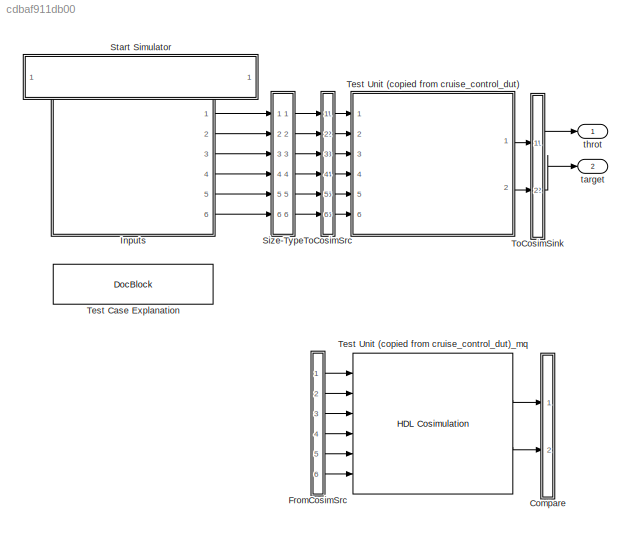
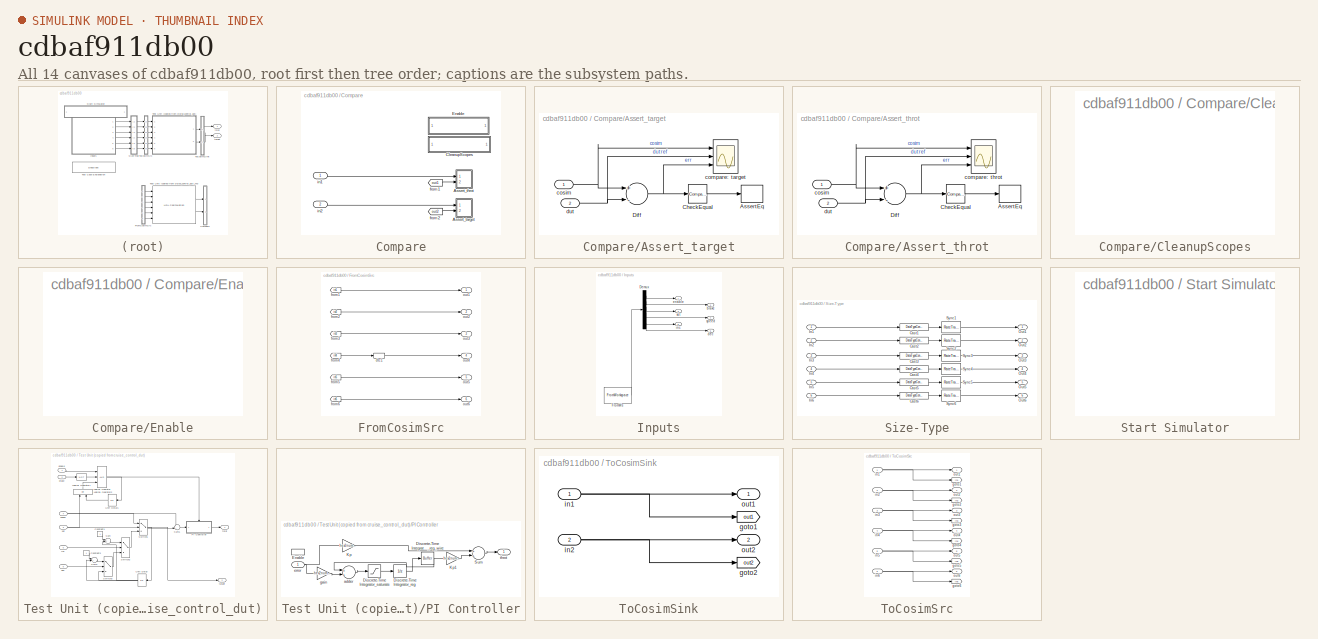
[diagram: thumbnail index - all 14 canvases of the model, root first then tree order]
MODEL slx_cdbaf911db00
KIND model
BLOCK [SubSystem] Compare
  Ports = [2]
  RequestExecContextInheritance = off
BLOCK [SubSystem] Compare/Assert_target
  Ports = [2]
  RequestExecContextInheritance = off
BLOCK [Assertion] Compare/Assert_target/AssertEq
  StopWhenAssertionFail = off
BLOCK [Reference] Compare/Assert_target/CheckEqual  REF=simulink/Logic and Bit
Operations/Compare
To Zero
  OutDataTypeStr = uint8
  Ports = [1, 1]
  SourceBlock = simulink/Logic and Bit\nOperations/Compare\nTo Zero
  SourceType = Compare To Zero
  ZeroCross = off
  relop = ==
BLOCK [Sum] Compare/Assert_target/Diff
  InputSameDT = off
  Inputs = +-
  OutDataTypeStr = Inherit: Inherit via internal rule
  Ports = [2, 1]
  SaturateOnIntegerOverflow = off
BLOCK [Scope] Compare/Assert_target/compare: target
  DataFormat = StructureWithTime
  Floating = off
  LimitDataPoints = off
  NumInputPorts = 3
  Ports = [3]
  ShowLegends = off
  YMax = 5~5~5
  YMin = -5~-5~-5
BLOCK [Inport] Compare/Assert_target/cosim
  IconDisplay = Port number
BLOCK [Inport] Compare/Assert_target/dut
  IconDisplay = Port number
  Port = 2
BLOCK [SubSystem] Compare/Assert_throt
  Ports = [2]
  RequestExecContextInheritance = off
BLOCK [Assertion] Compare/Assert_throt/AssertEq
  StopWhenAssertionFail = off
BLOCK [Reference] Compare/Assert_throt/CheckEqual  REF=simulink/Logic and Bit
Operations/Compare
To Zero
  OutDataTypeStr = uint8
  Ports = [1, 1]
  SourceBlock = simulink/Logic and Bit\nOperations/Compare\nTo Zero
  SourceType = Compare To Zero
  ZeroCross = off
  relop = ==
BLOCK [Sum] Compare/Assert_throt/Diff
  InputSameDT = off
  Inputs = +-
  OutDataTypeStr = Inherit: Inherit via internal rule
  Ports = [2, 1]
  SaturateOnIntegerOverflow = off
BLOCK [Scope] Compare/Assert_throt/compare: throt
  DataFormat = StructureWithTime
  Floating = off
  LimitDataPoints = off
  NumInputPorts = 3
  Ports = [3]
  ShowLegends = off
  YMax = 5~5~5
  YMin = -5~-5~-5
BLOCK [Inport] Compare/Assert_throt/cosim
  IconDisplay = Port number
BLOCK [Inport] Compare/Assert_throt/dut
  IconDisplay = Port number
  Port = 2
BLOCK [SubSystem] Compare/CleanupScopes
  OpenFcn = blkName = gcb;\nidx = regexp(blkName, '/CleanupScopes$', 'once');\nblkParent = blkName(1:idx-1);\nblks=find_system(blkParent, 'blocktype', 'Scope');\ne = get_param(blks{1}, 'Open');\nif strcmp(e, 'on'), f= 'off'; else f = 'on'; end\nfor ii=1:length(blks), set_param(blks{ii}, 'Open', f); end; drawnow;
  Ports = []
  RequestExecContextInheritance = off
BLOCK [SubSystem] Compare/Enable
  OpenFcn = blkName = gcb;\nidx = regexp(blkName, '/Enable$', 'once');\nblkParent = blkName(1:idx-1);\nblks=find_system(blkParent, 'blocktype', 'Assertion');\ne = get_param(blks{1}, 'Enabled');\nif strcmp(e, 'on'), f= 'off';, else, f = 'on';, end\nfor ii=1:length(blks), set_param(blks{ii}, 'Enabled', f);, end\ndispMsg = sprintf('disp([''Double click to turn %s \\n all Assertions''])', upper(e));\nset_param(gcb, 'Mask...<+19ch>
  Ports = []
  RequestExecContextInheritance = off
BLOCK [From] Compare/from1
  GotoTag = out1
  TagVisibility = global
BLOCK [From] Compare/from2
  GotoTag = out2
  TagVisibility = global
BLOCK [Inport] Compare/in1
  IconDisplay = Port number
BLOCK [Inport] Compare/in2
  IconDisplay = Port number
  Port = 2
BLOCK [SubSystem] FromCosimSrc
  Ports = [0, 6]
  RequestExecContextInheritance = off
BLOCK [DataTypeConversion] FromCosimSrc/dtc1
  OutDataTypeStr = double
BLOCK [From] FromCosimSrc/from1
  GotoTag = in1
  TagVisibility = global
BLOCK [From] FromCosimSrc/from2
  GotoTag = in2
  TagVisibility = global
BLOCK [From] FromCosimSrc/from3
  GotoTag = in3
  TagVisibility = global
BLOCK [From] FromCosimSrc/from4
  GotoTag = in4
  TagVisibility = global
BLOCK [From] FromCosimSrc/from5
  GotoTag = in5
  TagVisibility = global
BLOCK [From] FromCosimSrc/from6
  GotoTag = in6
  TagVisibility = global
BLOCK [Outport] FromCosimSrc/out1
  IconDisplay = Port number
BLOCK [Outport] FromCosimSrc/out2
  IconDisplay = Port number
  Port = 2
BLOCK [Outport] FromCosimSrc/out3
  IconDisplay = Port number
  Port = 3
BLOCK [Outport] FromCosimSrc/out4
  IconDisplay = Port number
  Port = 4
BLOCK [Outport] FromCosimSrc/out5
  IconDisplay = Port number
  Port = 5
BLOCK [Outport] FromCosimSrc/out6
  IconDisplay = Port number
  Port = 6
BLOCK [SubSystem] Inputs
  ClipboardFcn = sigbuilder_block('clipboard');
  CloseFcn = sigbuilder_block('close');
  ContinueFcn = sigbuilder_block('continue');
  CopyFcn = sigbuilder_block('copy');
  DeleteFcn = sigbuilder_block('delete');
  LoadFcn = sigbuilder_block('load');
  MaskHideContents = on
  ModelCloseFcn = sigbuilder_block('modelClose');
  NameChangeFcn = sigbuilder_block('namechange');
  OpenFcn = sigbuilder_block('open');
  PauseFcn = sigbuilder_block('pause');
  Ports = [0, 6]
  PreSaveFcn = sigbuilder_block('preSave');
  RequestExecContextInheritance = off
  StartFcn = sigbuilder_block('start');
  StopFcn = sigbuilder_block('stop');
  Tag = STV Subsys
BLOCK [Demux] Inputs/Demux
  Outputs = 6
  Ports = [1, 6]
  Tag = STV Demux
BLOCK [FromWorkspace] Inputs/FromWs
  SampleTime = 0
  Tag = STV FromWs
  VariableName = tuvar
BLOCK [Outport] Inputs/brake
  IconDisplay = Port number
  Port = 2
  Tag = STV Outport
BLOCK [Outport] Inputs/dec
  IconDisplay = Port number
  Port = 6
  Tag = STV Outport
BLOCK [Outport] Inputs/enable
  IconDisplay = Port number
  Tag = STV Outport
BLOCK [Outport] Inputs/inc
  IconDisplay = Port number
  Port = 5
  Tag = STV Outport
BLOCK [Outport] Inputs/set
  IconDisplay = Port number
  Port = 3
  Tag = STV Outport
BLOCK [Outport] Inputs/speed
  IconDisplay = Port number
  Port = 4
  Tag = STV Outport
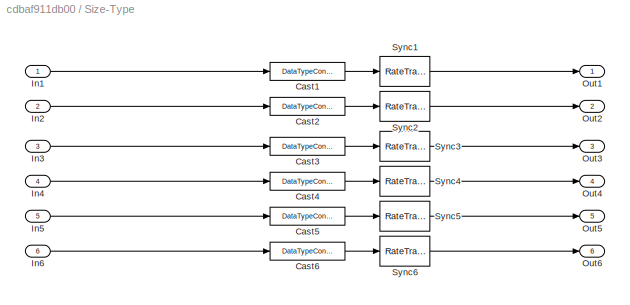
BLOCK [SubSystem] Size-Type
  Ports = [6, 6]
  RequestExecContextInheritance = off
BLOCK [DataTypeConversion] Size-Type/Cast1
  OutDataTypeStr = boolean
  RndMeth = Nearest
BLOCK [DataTypeConversion] Size-Type/Cast2
  OutDataTypeStr = boolean
  RndMeth = Nearest
BLOCK [DataTypeConversion] Size-Type/Cast3
  OutDataTypeStr = boolean
  RndMeth = Nearest
BLOCK [DataTypeConversion] Size-Type/Cast4
  OutDataTypeStr = double
  RndMeth = Nearest
BLOCK [DataTypeConversion] Size-Type/Cast5
  OutDataTypeStr = boolean
  RndMeth = Nearest
BLOCK [DataTypeConversion] Size-Type/Cast6
  OutDataTypeStr = boolean
  RndMeth = Nearest
BLOCK [Inport] Size-Type/In1
  IconDisplay = Port number
BLOCK [Inport] Size-Type/In2
  IconDisplay = Port number
  Port = 2
BLOCK [Inport] Size-Type/In3
  IconDisplay = Port number
  Port = 3
BLOCK [Inport] Size-Type/In4
  IconDisplay = Port number
  Port = 4
BLOCK [Inport] Size-Type/In5
  IconDisplay = Port number
  Port = 5
BLOCK [Inport] Size-Type/In6
  IconDisplay = Port number
  Port = 6
BLOCK [Outport] Size-Type/Out1
  IconDisplay = Port number
BLOCK [Outport] Size-Type/Out2
  IconDisplay = Port number
  Port = 2
BLOCK [Outport] Size-Type/Out3
  IconDisplay = Port number
  Port = 3
BLOCK [Outport] Size-Type/Out4
  IconDisplay = Port number
  Port = 4
BLOCK [Outport] Size-Type/Out5
  IconDisplay = Port number
  Port = 5
BLOCK [Outport] Size-Type/Out6
  IconDisplay = Port number
  Port = 6
BLOCK [RateTransition] Size-Type/Sync1
  OutPortSampleTime = [0.01,0]
BLOCK [RateTransition] Size-Type/Sync2
  OutPortSampleTime = [0.01,0]
BLOCK [RateTransition] Size-Type/Sync3
  OutPortSampleTime = [0.01,0]
BLOCK [RateTransition] Size-Type/Sync4
  OutPortSampleTime = [0.01,0]
BLOCK [RateTransition] Size-Type/Sync5
  OutPortSampleTime = [0.01,0]
BLOCK [RateTransition] Size-Type/Sync6
  OutPortSampleTime = [0.01,0]
BLOCK [SubSystem] Start Simulator
  OpenFcn = try\n   cosimDirName = pwd;\n   cd 'hdlsrc\cruise_control_dut_harness';\n   vsim('tclstart',gm_cruise_control_dut_harness_mq_tcl);\n   cd (cosimDirName);\n   clear cosimDirName;\ncatch me\n   disp('Failed to launch cosimulator with "vsim"');\n   disp (me.message);\n   cd (cosimDirName);\n   clear cosimDirName;\nend
  Ports = []
  RequestExecContextInheritance = off
BLOCK [Reference] Test Case Explanation  REF=simulink/Model-Wide
Utilities/DocBlock
  DocumentType = Text
  Ports = []
  SourceBlock = simulink/Model-Wide\nUtilities/DocBlock
  SourceType = DocBlock
  UserDataPersistent = on
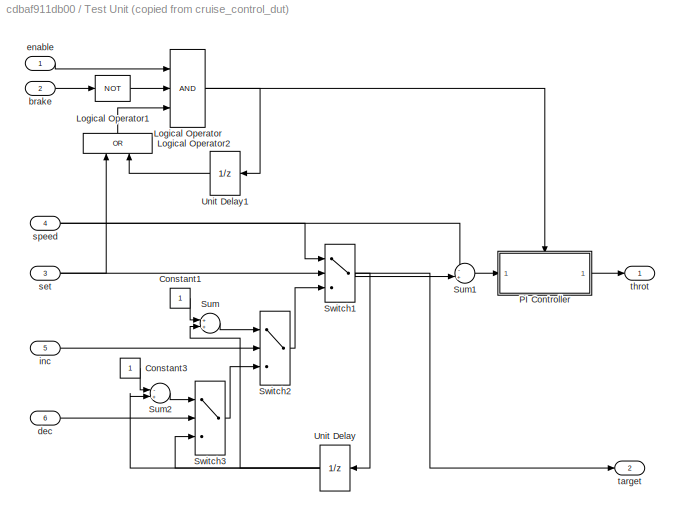
BLOCK [SubSystem] Test Unit (copied from cruise_control_dut)
  Permissions = ReadOnly
  Ports = [6, 2]
  RequestExecContextInheritance = off
BLOCK [Constant] Test Unit (copied from cruise_control_dut)/Constant1
BLOCK [Constant] Test Unit (copied from cruise_control_dut)/Constant3
BLOCK [Logic] Test Unit (copied from cruise_control_dut)/Logical Operator
  AllPortsSameDT = off
  Inputs = 3
  OutDataTypeStr = boolean
  Ports = [3, 1]
BLOCK [Logic] Test Unit (copied from cruise_control_dut)/Logical Operator1
  AllPortsSameDT = off
  Operator = NOT
  OutDataTypeStr = boolean
  Ports = [1, 1]
BLOCK [Logic] Test Unit (copied from cruise_control_dut)/Logical Operator2
  AllPortsSameDT = off
  Operator = OR
  OutDataTypeStr = boolean
  Ports = [2, 1]
BLOCK [SubSystem] Test Unit (copied from cruise_control_dut)/PI Controller
  Ports = [1, 1, 1]
  RequestExecContextInheritance = off
BLOCK [UnitDelay] Test Unit (copied from cruise_control_dut)/PI Controller/Discrete-Time Integrator_reg
  InitialCondition = hex2num('0000000000000000')
  SampleTime = 0.01
BLOCK [Saturate] Test Unit (copied from cruise_control_dut)/PI Controller/Discrete-Time Integrator_saturate
  InputPortMap = u0
  LowerLimit = hex2num('c014000000000000')
  OutDataTypeStr = double
  Ports = [1, 1]
  SampleTime = 0.01
  UpperLimit = hex2num('4014000000000000')
BLOCK [Reference] Test Unit (copied from cruise_control_dut)/PI Controller/Discrete-Time Integrator_x_reg_wire  REF=hdlmdlgenlib/Buffer
  Ports = [1, 1]
  SourceBlock = hdlmdlgenlib/Buffer
  SourceType = Buffer/Wire
BLOCK [EnablePort] Test Unit (copied from cruise_control_dut)/PI Controller/Enable
  Ports = []
BLOCK [Gain] Test Unit (copied from cruise_control_dut)/PI Controller/Kp
  Gain = hex2num('3f947ae147ae147b')
  OutDataTypeStr = double
  ParamDataTypeStr = Inherit: Inherit via internal rule
  SampleTime = 0.01
  SaturateOnIntegerOverflow = off
BLOCK [Gain] Test Unit (copied from cruise_control_dut)/PI Controller/Kp1
  Gain = hex2num('3f847ae147ae147b')
  OutDataTypeStr = double
  ParamDataTypeStr = Inherit: Inherit via internal rule
  SampleTime = 0.01
  SaturateOnIntegerOverflow = off
BLOCK [Sum] Test Unit (copied from cruise_control_dut)/PI Controller/Sum
  AccumDataTypeStr = double
  InputSameDT = off
  OutDataTypeStr = double
  Ports = [2, 1]
  SampleTime = 0.01
  SaturateOnIntegerOverflow = off
BLOCK [Sum] Test Unit (copied from cruise_control_dut)/PI Controller/adder
  AccumDataTypeStr = double
  InputSameDT = off
  OutDataTypeStr = double
  Ports = [2, 1]
  SampleTime = 0.01
  SaturateOnIntegerOverflow = off
BLOCK [Inport] Test Unit (copied from cruise_control_dut)/PI Controller/error
  IconDisplay = Port number
BLOCK [Gain] Test Unit (copied from cruise_control_dut)/PI Controller/gain
  Gain = hex2num('3f847ae147ae147b')
  OutDataTypeStr = double
  ParamDataTypeStr = Inherit: Inherit via internal rule
  SampleTime = 0.01
  SaturateOnIntegerOverflow = off
BLOCK [Outport] Test Unit (copied from cruise_control_dut)/PI Controller/throt
  IconDisplay = Port number
  InitialOutput = 0
BLOCK [Sum] Test Unit (copied from cruise_control_dut)/Sum
  IconShape = round
  InputSameDT = off
  Inputs = ++|
  OutDataTypeStr = Inherit: Inherit via internal rule
  Ports = [2, 1]
  SaturateOnIntegerOverflow = off
BLOCK [Sum] Test Unit (copied from cruise_control_dut)/Sum1
  IconShape = round
  InputSameDT = off
  Inputs = -+|
  OutDataTypeStr = Inherit: Inherit via internal rule
  Ports = [2, 1]
  SaturateOnIntegerOverflow = off
BLOCK [Sum] Test Unit (copied from cruise_control_dut)/Sum2
  IconShape = round
  InputSameDT = off
  Inputs = -+|
  OutDataTypeStr = Inherit: Inherit via internal rule
  Ports = [2, 1]
  SaturateOnIntegerOverflow = off
BLOCK [Switch] Test Unit (copied from cruise_control_dut)/Switch1
  Criteria = u2 ~= 0
  InputSameDT = off
  SaturateOnIntegerOverflow = off
BLOCK [Switch] Test Unit (copied from cruise_control_dut)/Switch2
  Criteria = u2 ~= 0
  InputSameDT = off
  SaturateOnIntegerOverflow = off
BLOCK [Switch] Test Unit (copied from cruise_control_dut)/Switch3
  Criteria = u2 ~= 0
  InputSameDT = off
  SaturateOnIntegerOverflow = off
BLOCK [UnitDelay] Test Unit (copied from cruise_control_dut)/Unit Delay
  SampleTime = 0.01
BLOCK [UnitDelay] Test Unit (copied from cruise_control_dut)/Unit Delay1
  SampleTime = 0.01
BLOCK [Inport] Test Unit (copied from cruise_control_dut)/brake
  IconDisplay = Port number
  OutDataTypeStr = boolean
  Port = 2
BLOCK [Inport] Test Unit (copied from cruise_control_dut)/dec
  IconDisplay = Port number
  OutDataTypeStr = boolean
  Port = 6
BLOCK [Inport] Test Unit (copied from cruise_control_dut)/enable
  IconDisplay = Port number
  OutDataTypeStr = boolean
BLOCK [Inport] Test Unit (copied from cruise_control_dut)/inc
  IconDisplay = Port number
  OutDataTypeStr = boolean
  Port = 5
BLOCK [Inport] Test Unit (copied from cruise_control_dut)/set
  IconDisplay = Port number
  OutDataTypeStr = boolean
  Port = 3
BLOCK [Inport] Test Unit (copied from cruise_control_dut)/speed
  IconDisplay = Port number
  OutDataTypeStr = double
  Port = 4
BLOCK [Outport] Test Unit (copied from cruise_control_dut)/target
  IconDisplay = Port number
  Port = 2
BLOCK [Outport] Test Unit (copied from cruise_control_dut)/throt
  IconDisplay = Port number
BLOCK [Reference] Test Unit (copied from cruise_control_dut)_mq  REF=modelsimlib/HDL Cosimulation
  AllowDirectFeedthrough = on
  ClockModes = []
  ClockTimes = []
  CommLocal = on
  CommPortNumber = 4449
  CommSharedMemory = on
  CommShowInfo = on
  CosimBypass = Full Simulation
  HdlClocks = 0
  PortFracLengths = [0,0,0,0,0,0,0,0]
  PortModes = [1 1 1 1 1 1 2 2 ]
  PortPaths = /Test_Unit_copied_from_cruise_control_dut/enable;/Test_Unit_copied_from_cruise_control_dut/brake;/Test_Unit_copied_from_cruise_control_dut/set;/Test_Unit_copied_from_cruise_control_dut/speed;/Test_Unit_copied_from_cruise_control_dut/inc;/Test_Unit_copied_from_cruise_control_dut/dec;/Test_Unit_copied_from_cruise_control_dut/throt;/Test_Unit_copied_from_cruise_control_dut/target
  PortSigns = [-1 -1 -1 -1 -1 -1 2 2 ]
  PortTimes = [-1 -1 -1 -1 -1 -1 0.01 0.01 ]
  Ports = [6, 2]
  PreRunTime = 40
  PreRunTimeUnit = ns
  ProductName = EDA Simulator Link MQ
  RunAutoTimescale = off
  SourceBlock = modelsimlib/HDL Cosimulation
  SourceType = Simulink and ModelSim Cosimulation
  TclPostSimCommand = puts "done"
  TclPreSimCommand = puts "Running Simulink Cosimulation block.";\n puts "Chip Name: --> cruise_control_dut_harness/Test Unit (copied from cruise_control_dut)";\n puts "Target language: --> vhdl";\n puts "Target directory: --> hdlsrc\cruise_control_dut_harness";\n puts [clock format [clock seconds]];\n# Clock force command;\nforce /Test_Unit_copied_from_cruise_control_dut/clk 0 0ns, 1 5ns -r 10ns;\n# Clock enable force comma...<+169ch>
  TimingMode = ns
  TimingScaleFactor = 1000
  idxCellArray = {'UNUSED_VAR'}
BLOCK [SubSystem] ToCosimSink
  Ports = [2, 2]
  RequestExecContextInheritance = off
BLOCK [Goto] ToCosimSink/goto1
  GotoTag = out1
  TagVisibility = global
BLOCK [Goto] ToCosimSink/goto2
  GotoTag = out2
  TagVisibility = global
BLOCK [Inport] ToCosimSink/in1
  IconDisplay = Port number
BLOCK [Inport] ToCosimSink/in2
  IconDisplay = Port number
  Port = 2
BLOCK [Outport] ToCosimSink/out1
  IconDisplay = Port number
BLOCK [Outport] ToCosimSink/out2
  IconDisplay = Port number
  Port = 2
BLOCK [SubSystem] ToCosimSrc
  Ports = [6, 6]
  RequestExecContextInheritance = off
BLOCK [Goto] ToCosimSrc/goto1
  GotoTag = in1
  TagVisibility = global
BLOCK [Goto] ToCosimSrc/goto2
  GotoTag = in2
  TagVisibility = global
BLOCK [Goto] ToCosimSrc/goto3
  GotoTag = in3
  TagVisibility = global
BLOCK [Goto] ToCosimSrc/goto4
  GotoTag = in4
  TagVisibility = global
BLOCK [Goto] ToCosimSrc/goto5
  GotoTag = in5
  TagVisibility = global
BLOCK [Goto] ToCosimSrc/goto6
  GotoTag = in6
  TagVisibility = global
BLOCK [Inport] ToCosimSrc/in1
  IconDisplay = Port number
BLOCK [Inport] ToCosimSrc/in2
  IconDisplay = Port number
  Port = 2
BLOCK [Inport] ToCosimSrc/in3
  IconDisplay = Port number
  Port = 3
BLOCK [Inport] ToCosimSrc/in4
  IconDisplay = Port number
  Port = 4
BLOCK [Inport] ToCosimSrc/in5
  IconDisplay = Port number
  Port = 5
BLOCK [Inport] ToCosimSrc/in6
  IconDisplay = Port number
  Port = 6
BLOCK [Outport] ToCosimSrc/out1
  IconDisplay = Port number
BLOCK [Outport] ToCosimSrc/out2
  IconDisplay = Port number
  Port = 2
BLOCK [Outport] ToCosimSrc/out3
  IconDisplay = Port number
  Port = 3
BLOCK [Outport] ToCosimSrc/out4
  IconDisplay = Port number
  Port = 4
BLOCK [Outport] ToCosimSrc/out5
  IconDisplay = Port number
  Port = 5
BLOCK [Outport] ToCosimSrc/out6
  IconDisplay = Port number
  Port = 6
BLOCK [Outport] target
  IconDisplay = Port number
  Port = 2
BLOCK [Outport] throt
  IconDisplay = Port number
LINE Compare/Assert_target/CheckEqual:1 -> Compare/Assert_target/AssertEq:1
NET Compare/Assert_target/Diff:1 -> Compare/Assert_target/CheckEqual:1, Compare/Assert_target/compare: target:3
NET Compare/Assert_target/cosim:1 -> Compare/Assert_target/Diff:1, Compare/Assert_target/compare: target:1
NET Compare/Assert_target/dut:1 -> Compare/Assert_target/Diff:2, Compare/Assert_target/compare: target:2
LINE Compare/Assert_throt/CheckEqual:1 -> Compare/Assert_throt/AssertEq:1
NET Compare/Assert_throt/Diff:1 -> Compare/Assert_throt/CheckEqual:1, Compare/Assert_throt/compare: throt:3
NET Compare/Assert_throt/cosim:1 -> Compare/Assert_throt/Diff:1, Compare/Assert_throt/compare: throt:1
NET Compare/Assert_throt/dut:1 -> Compare/Assert_throt/Diff:2, Compare/Assert_throt/compare: throt:2
LINE Compare/from1:1 -> Compare/Assert_throt:2
LINE Compare/from2:1 -> Compare/Assert_target:2
LINE Compare/in1:1 -> Compare/Assert_throt:1
LINE Compare/in2:1 -> Compare/Assert_target:1
LINE FromCosimSrc/dtc1:1 -> FromCosimSrc/out4:1
LINE FromCosimSrc/from1:1 -> FromCosimSrc/out1:1
LINE FromCosimSrc/from2:1 -> FromCosimSrc/out2:1
LINE FromCosimSrc/from3:1 -> FromCosimSrc/out3:1
LINE FromCosimSrc/from4:1 -> FromCosimSrc/dtc1:1
LINE FromCosimSrc/from5:1 -> FromCosimSrc/out5:1
LINE FromCosimSrc/from6:1 -> FromCosimSrc/out6:1
LINE FromCosimSrc:1 -> Test Unit (copied from cruise_control_dut)_mq:1
LINE FromCosimSrc:2 -> Test Unit (copied from cruise_control_dut)_mq:2
LINE FromCosimSrc:3 -> Test Unit (copied from cruise_control_dut)_mq:3
LINE FromCosimSrc:4 -> Test Unit (copied from cruise_control_dut)_mq:4
LINE FromCosimSrc:5 -> Test Unit (copied from cruise_control_dut)_mq:5
LINE FromCosimSrc:6 -> Test Unit (copied from cruise_control_dut)_mq:6
LINE Inputs/Demux:1 -> Inputs/enable:1
LINE Inputs/Demux:2 -> Inputs/brake:1
LINE Inputs/Demux:3 -> Inputs/set:1
LINE Inputs/Demux:4 -> Inputs/speed:1
LINE Inputs/Demux:5 -> Inputs/inc:1
LINE Inputs/Demux:6 -> Inputs/dec:1
LINE Inputs/FromWs:1 -> Inputs/Demux:1
LINE Inputs:1 -> Size-Type:1
LINE Inputs:2 -> Size-Type:2
LINE Inputs:3 -> Size-Type:3
LINE Inputs:4 -> Size-Type:4
LINE Inputs:5 -> Size-Type:5
LINE Inputs:6 -> Size-Type:6
LINE Size-Type/Cast1:1 -> Size-Type/Sync1:1
LINE Size-Type/Cast2:1 -> Size-Type/Sync2:1
LINE Size-Type/Cast3:1 -> Size-Type/Sync3:1
LINE Size-Type/Cast4:1 -> Size-Type/Sync4:1
LINE Size-Type/Cast5:1 -> Size-Type/Sync5:1
LINE Size-Type/Cast6:1 -> Size-Type/Sync6:1
LINE Size-Type/In1:1 -> Size-Type/Cast1:1
LINE Size-Type/In2:1 -> Size-Type/Cast2:1
LINE Size-Type/In3:1 -> Size-Type/Cast3:1
LINE Size-Type/In4:1 -> Size-Type/Cast4:1
LINE Size-Type/In5:1 -> Size-Type/Cast5:1
LINE Size-Type/In6:1 -> Size-Type/Cast6:1
LINE Size-Type/Sync1:1 -> Size-Type/Out1:1
LINE Size-Type/Sync2:1 -> Size-Type/Out2:1
LINE Size-Type/Sync3:1 -> Size-Type/Out3:1
LINE Size-Type/Sync4:1 -> Size-Type/Out4:1
LINE Size-Type/Sync5:1 -> Size-Type/Out5:1
LINE Size-Type/Sync6:1 -> Size-Type/Out6:1
LINE Size-Type:1 -> ToCosimSrc:1
LINE Size-Type:2 -> ToCosimSrc:2
LINE Size-Type:3 -> ToCosimSrc:3
LINE Size-Type:4 -> ToCosimSrc:4
LINE Size-Type:5 -> ToCosimSrc:5
LINE Size-Type:6 -> ToCosimSrc:6
LINE Test Unit (copied from cruise_control_dut)/Constant1:1 -> Test Unit (copied from cruise_control_dut)/Sum:1
LINE Test Unit (copied from cruise_control_dut)/Constant3:1 -> Test Unit (copied from cruise_control_dut)/Sum2:1
LINE Test Unit (copied from cruise_control_dut)/Logical Operator1:1 -> Test Unit (copied from cruise_control_dut)/Logical Operator:2
LINE Test Unit (copied from cruise_control_dut)/Logical Operator2:1 -> Test Unit (copied from cruise_control_dut)/Logical Operator:3
NET Test Unit (copied from cruise_control_dut)/Logical Operator:1 -> Test Unit (copied from cruise_control_dut)/PI Controller:enable, Test Unit (copied from cruise_control_dut)/Unit Delay1:1
LINE Test Unit (copied from cruise_control_dut)/PI Controller/Discrete-Time Integrator_reg:1 -> Test Unit (copied from cruise_control_dut)/PI Controller/Discrete-Time Integrator_x_reg_wire:1
LINE Test Unit (copied from cruise_control_dut)/PI Controller/Discrete-Time Integrator_saturate:1 -> Test Unit (copied from cruise_control_dut)/PI Controller/Discrete-Time Integrator_reg:1
NET Test Unit (copied from cruise_control_dut)/PI Controller/Discrete-Time Integrator_x_reg_wire:1 -> Test Unit (copied from cruise_control_dut)/PI Controller/Kp1:1, Test Unit (copied from cruise_control_dut)/PI Controller/adder:1
LINE Test Unit (copied from cruise_control_dut)/PI Controller/Kp1:1 -> Test Unit (copied from cruise_control_dut)/PI Controller/Sum:2
LINE Test Unit (copied from cruise_control_dut)/PI Controller/Kp:1 -> Test Unit (copied from cruise_control_dut)/PI Controller/Sum:1
LINE Test Unit (copied from cruise_control_dut)/PI Controller/Sum:1 -> Test Unit (copied from cruise_control_dut)/PI Controller/throt:1
LINE Test Unit (copied from cruise_control_dut)/PI Controller/adder:1 -> Test Unit (copied from cruise_control_dut)/PI Controller/Discrete-Time Integrator_saturate:1
NET Test Unit (copied from cruise_control_dut)/PI Controller/error:1 -> Test Unit (copied from cruise_control_dut)/PI Controller/Kp:1, Test Unit (copied from cruise_control_dut)/PI Controller/gain:1
LINE Test Unit (copied from cruise_control_dut)/PI Controller/gain:1 -> Test Unit (copied from cruise_control_dut)/PI Controller/adder:2
LINE Test Unit (copied from cruise_control_dut)/PI Controller:1 -> Test Unit (copied from cruise_control_dut)/throt:1
LINE Test Unit (copied from cruise_control_dut)/Sum1:1 -> Test Unit (copied from cruise_control_dut)/PI Controller:1
LINE Test Unit (copied from cruise_control_dut)/Sum2:1 -> Test Unit (copied from cruise_control_dut)/Switch3:1
LINE Test Unit (copied from cruise_control_dut)/Sum:1 -> Test Unit (copied from cruise_control_dut)/Switch2:1
NET Test Unit (copied from cruise_control_dut)/Switch1:1 -> Test Unit (copied from cruise_control_dut)/Sum1:2, Test Unit (copied from cruise_control_dut)/Unit Delay:1, Test Unit (copied from cruise_control_dut)/target:1
LINE Test Unit (copied from cruise_control_dut)/Switch2:1 -> Test Unit (copied from cruise_control_dut)/Switch1:3
LINE Test Unit (copied from cruise_control_dut)/Switch3:1 -> Test Unit (copied from cruise_control_dut)/Switch2:3
LINE Test Unit (copied from cruise_control_dut)/Unit Delay1:1 -> Test Unit (copied from cruise_control_dut)/Logical Operator2:2
NET Test Unit (copied from cruise_control_dut)/Unit Delay:1 -> Test Unit (copied from cruise_control_dut)/Sum2:2, Test Unit (copied from cruise_control_dut)/Sum:2, Test Unit (copied from cruise_control_dut)/Switch3:3
LINE Test Unit (copied from cruise_control_dut)/brake:1 -> Test Unit (copied from cruise_control_dut)/Logical Operator1:1
LINE Test Unit (copied from cruise_control_dut)/dec:1 -> Test Unit (copied from cruise_control_dut)/Switch3:2
LINE Test Unit (copied from cruise_control_dut)/enable:1 -> Test Unit (copied from cruise_control_dut)/Logical Operator:1
LINE Test Unit (copied from cruise_control_dut)/inc:1 -> Test Unit (copied from cruise_control_dut)/Switch2:2
NET Test Unit (copied from cruise_control_dut)/set:1 -> Test Unit (copied from cruise_control_dut)/Logical Operator2:1, Test Unit (copied from cruise_control_dut)/Switch1:2
NET Test Unit (copied from cruise_control_dut)/speed:1 -> Test Unit (copied from cruise_control_dut)/Sum1:1, Test Unit (copied from cruise_control_dut)/Switch1:1
LINE Test Unit (copied from cruise_control_dut):1 -> ToCosimSink:1
LINE Test Unit (copied from cruise_control_dut):2 -> ToCosimSink:2
LINE Test Unit (copied from cruise_control_dut)_mq:1 -> Compare:1
LINE Test Unit (copied from cruise_control_dut)_mq:2 -> Compare:2
NET ToCosimSink/in1:1 -> ToCosimSink/goto1:1, ToCosimSink/out1:1
NET ToCosimSink/in2:1 -> ToCosimSink/goto2:1, ToCosimSink/out2:1
LINE ToCosimSink:1 -> throt:1
LINE ToCosimSink:2 -> target:1
NET ToCosimSrc/in1:1 -> ToCosimSrc/goto1:1, ToCosimSrc/out1:1
NET ToCosimSrc/in2:1 -> ToCosimSrc/goto2:1, ToCosimSrc/out2:1
NET ToCosimSrc/in3:1 -> ToCosimSrc/goto3:1, ToCosimSrc/out3:1
NET ToCosimSrc/in4:1 -> ToCosimSrc/goto4:1, ToCosimSrc/out4:1
NET ToCosimSrc/in5:1 -> ToCosimSrc/goto5:1, ToCosimSrc/out5:1
NET ToCosimSrc/in6:1 -> ToCosimSrc/goto6:1, ToCosimSrc/out6:1
LINE ToCosimSrc:1 -> Test Unit (copied from cruise_control_dut):1
LINE ToCosimSrc:2 -> Test Unit (copied from cruise_control_dut):2
LINE ToCosimSrc:3 -> Test Unit (copied from cruise_control_dut):3
LINE ToCosimSrc:4 -> Test Unit (copied from cruise_control_dut):4
LINE ToCosimSrc:5 -> Test Unit (copied from cruise_control_dut):5
LINE ToCosimSrc:6 -> Test Unit (copied from cruise_control_dut):6
note: NET lines group one-source signal fan-out (src -> all destinations, sorted); 1:1 wires keep LINE
